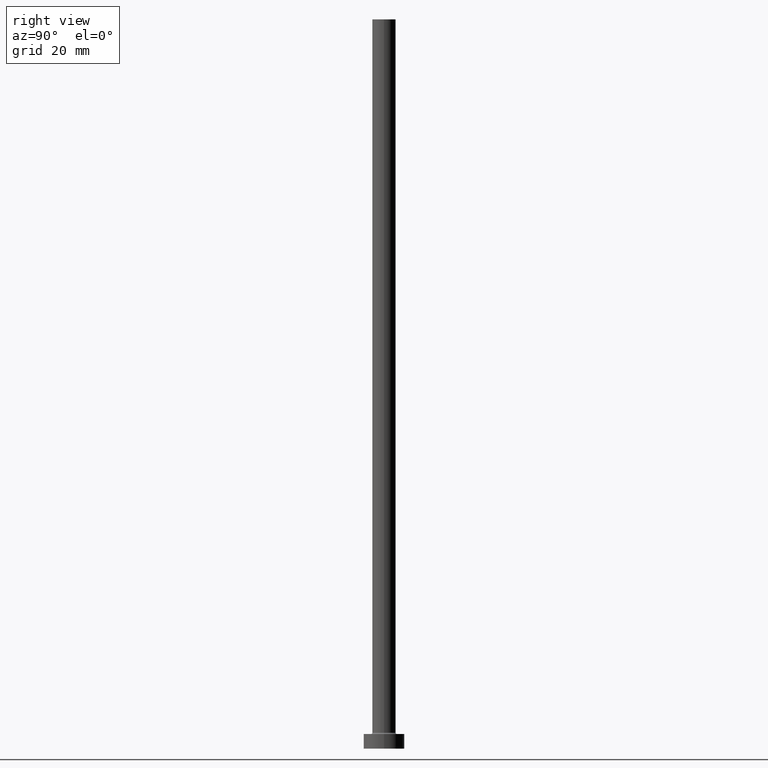
[diagram: clean part render]
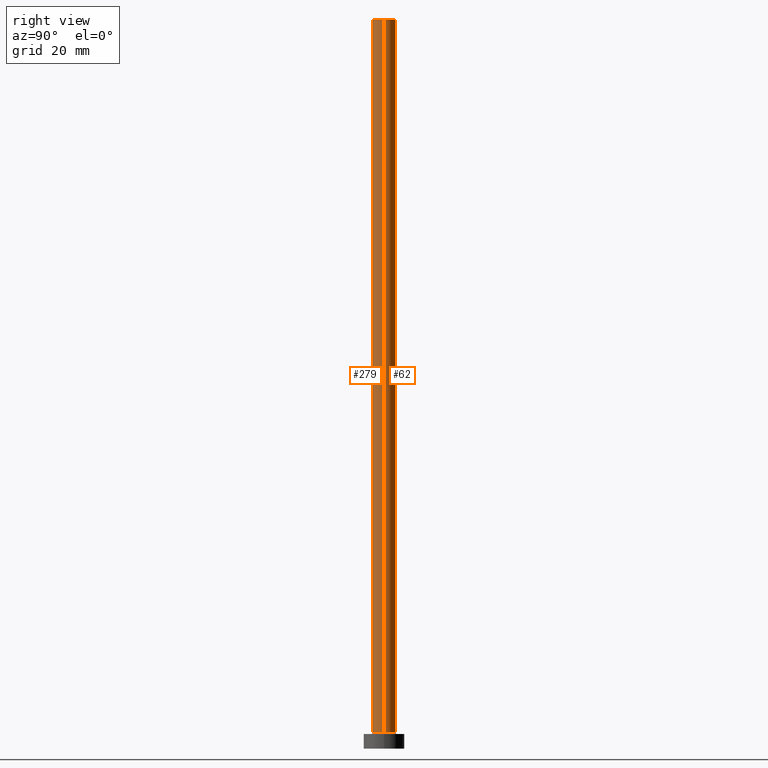
[diagram: same view with one multi-face feature highlighted, each face labeled with its STEP entity id]
A machine part, right view. The highlighted faces form ONE feature: a constant-radius fillet chain: 2 tangent blend faces with common blend radius 4 mm. The faces share edges in the B-rep.
Their STEP definitions:
[1] entity #279 (Cylinder):
#4 = EDGE_CURVE ( 'NONE', #28, #74, #382, .T. ) ;
#12 = DIRECTION ( 'NONE',  ( -0.000000000000000000, -0.000000000000000000, -1.000000000000000000 ) ) ;
#28 = VERTEX_POINT ( 'NONE', #126 ) ;
#35 = EDGE_CURVE ( 'NONE', #423, #246, #300, .T. ) ;
#51 = DIRECTION ( 'NONE',  ( -0.000000000000000000, -0.000000000000000000, -1.000000000000000000 ) ) ;
#55 = DIRECTION ( 'NONE',  ( 1.000000000000000000, 0.000000000000000000, 0.000000000000000000 ) ) ;
#74 = VERTEX_POINT ( 'NONE', #93 ) ;
#75 = FACE_OUTER_BOUND ( 'NONE', #204, .T. ) ;
#76 = CARTESIAN_POINT ( 'NONE',  ( 0.000000000000000000, 0.000000000000000000, 250.0000000000000000 ) ) ;
#93 = CARTESIAN_POINT ( 'NONE',  ( 4.000000000000000000, 4.898587196589412829E-16, 5.500000000000005329 ) ) ;
#98 = AXIS2_PLACEMENT_3D ( 'NONE', #267, #231, #55 ) ;
#116 = DIRECTION ( 'NONE',  ( -0.000000000000000000, -0.000000000000000000, -1.000000000000000000 ) ) ;
#126 = CARTESIAN_POINT ( 'NONE',  ( -4.000000000000000000, 0.000000000000000000, 5.500000000000005329 ) ) ;
#131 = CARTESIAN_POINT ( 'NONE',  ( -4.000000000000000000, 0.000000000000000000, 250.0000000000000000 ) ) ;
#134 = CARTESIAN_POINT ( 'NONE',  ( 4.000000000000000000, 4.898587196589412829E-16, 250.0000000000000000 ) ) ;
#171 = LINE ( 'NONE', #134, #194 ) ;
#194 = VECTOR ( 'NONE', #12, 1000.000000000000000 ) ;
#204 = EDGE_LOOP ( 'NONE', ( #277, #343, #429, #245 ) ) ;
#223 = CARTESIAN_POINT ( 'NONE',  ( 4.000000000000000000, 4.898587196589412829E-16, 250.0000000000000000 ) ) ;
#227 = LINE ( 'NONE', #131, #440 ) ;
#231 = DIRECTION ( 'NONE',  ( 0.000000000000000000, 0.000000000000000000, 1.000000000000000000 ) ) ;
#241 = CARTESIAN_POINT ( 'NONE',  ( 0.000000000000000000, 0.000000000000000000, 5.500000000000005329 ) ) ;
#245 = ORIENTED_EDGE ( 'NONE', *, *, #4, .T. ) ;
#246 = VERTEX_POINT ( 'NONE', #223 ) ;
#265 = DIRECTION ( 'NONE',  ( 1.000000000000000000, 0.000000000000000000, 0.000000000000000000 ) ) ;
#267 = CARTESIAN_POINT ( 'NONE',  ( 0.000000000000000000, 0.000000000000000000, 250.0000000000000000 ) ) ;
#277 = ORIENTED_EDGE ( 'NONE', *, *, #430, .F. ) ;
#279 = ADVANCED_FACE ( 'NONE', ( #75 ), #328, .T. ) ;
#300 = CIRCLE ( 'NONE', #98, 4.000000000000000000 ) ;
#328 = CYLINDRICAL_SURFACE ( 'NONE', #336, 4.000000000000000000 ) ;
#336 = AXIS2_PLACEMENT_3D ( 'NONE', #76, #116, #368 ) ;
#343 = ORIENTED_EDGE ( 'NONE', *, *, #35, .F. ) ;
#368 = DIRECTION ( 'NONE',  ( -1.000000000000000000, 0.000000000000000000, 0.000000000000000000 ) ) ;
#381 = CARTESIAN_POINT ( 'NONE',  ( -4.000000000000000000, 0.000000000000000000, 250.0000000000000000 ) ) ;
#382 = CIRCLE ( 'NONE', #441, 4.000000000000000000 ) ;
#392 = EDGE_CURVE ( 'NONE', #423, #28, #227, .T. ) ;
#409 = DIRECTION ( 'NONE',  ( 0.000000000000000000, 0.000000000000000000, 1.000000000000000000 ) ) ;
#423 = VERTEX_POINT ( 'NONE', #381 ) ;
#429 = ORIENTED_EDGE ( 'NONE', *, *, #392, .T. ) ;
#430 = EDGE_CURVE ( 'NONE', #246, #74, #171, .T. ) ;
#440 = VECTOR ( 'NONE', #51, 1000.000000000000000 ) ;
#441 = AXIS2_PLACEMENT_3D ( 'NONE', #241, #409, #265 ) ;
[2] entity #62 (Cylinder):
#12 = DIRECTION ( 'NONE',  ( -0.000000000000000000, -0.000000000000000000, -1.000000000000000000 ) ) ;
#16 = DIRECTION ( 'NONE',  ( 1.000000000000000000, 0.000000000000000000, 0.000000000000000000 ) ) ;
#21 = CARTESIAN_POINT ( 'NONE',  ( 0.000000000000000000, 0.000000000000000000, 250.0000000000000000 ) ) ;
#22 = EDGE_LOOP ( 'NONE', ( #173, #68, #275, #366 ) ) ;
#26 = FACE_OUTER_BOUND ( 'NONE', #22, .T. ) ;
#28 = VERTEX_POINT ( 'NONE', #126 ) ;
#29 = CIRCLE ( 'NONE', #162, 4.000000000000000000 ) ;
#51 = DIRECTION ( 'NONE',  ( -0.000000000000000000, -0.000000000000000000, -1.000000000000000000 ) ) ;
#62 = ADVANCED_FACE ( 'NONE', ( #26 ), #306, .T. ) ;
#68 = ORIENTED_EDGE ( 'NONE', *, *, #430, .T. ) ;
#74 = VERTEX_POINT ( 'NONE', #93 ) ;
#86 = DIRECTION ( 'NONE',  ( 0.000000000000000000, 0.000000000000000000, 1.000000000000000000 ) ) ;
#93 = CARTESIAN_POINT ( 'NONE',  ( 4.000000000000000000, 4.898587196589412829E-16, 5.500000000000005329 ) ) ;
#126 = CARTESIAN_POINT ( 'NONE',  ( -4.000000000000000000, 0.000000000000000000, 5.500000000000005329 ) ) ;
#131 = CARTESIAN_POINT ( 'NONE',  ( -4.000000000000000000, 0.000000000000000000, 250.0000000000000000 ) ) ;
#134 = CARTESIAN_POINT ( 'NONE',  ( 4.000000000000000000, 4.898587196589412829E-16, 250.0000000000000000 ) ) ;
#162 = AXIS2_PLACEMENT_3D ( 'NONE', #401, #399, #219 ) ;
#171 = LINE ( 'NONE', #134, #194 ) ;
#173 = ORIENTED_EDGE ( 'NONE', *, *, #222, .F. ) ;
#194 = VECTOR ( 'NONE', #12, 1000.000000000000000 ) ;
#202 = AXIS2_PLACEMENT_3D ( 'NONE', #272, #86, #16 ) ;
#219 = DIRECTION ( 'NONE',  ( 1.000000000000000000, 0.000000000000000000, 0.000000000000000000 ) ) ;
#222 = EDGE_CURVE ( 'NONE', #246, #423, #29, .T. ) ;
#223 = CARTESIAN_POINT ( 'NONE',  ( 4.000000000000000000, 4.898587196589412829E-16, 250.0000000000000000 ) ) ;
#227 = LINE ( 'NONE', #131, #440 ) ;
#246 = VERTEX_POINT ( 'NONE', #223 ) ;
#256 = AXIS2_PLACEMENT_3D ( 'NONE', #21, #446, #453 ) ;
#272 = CARTESIAN_POINT ( 'NONE',  ( 0.000000000000000000, 0.000000000000000000, 5.500000000000005329 ) ) ;
#275 = ORIENTED_EDGE ( 'NONE', *, *, #357, .T. ) ;
#306 = CYLINDRICAL_SURFACE ( 'NONE', #256, 4.000000000000000000 ) ;
#357 = EDGE_CURVE ( 'NONE', #74, #28, #418, .T. ) ;
#366 = ORIENTED_EDGE ( 'NONE', *, *, #392, .F. ) ;
#381 = CARTESIAN_POINT ( 'NONE',  ( -4.000000000000000000, 0.000000000000000000, 250.0000000000000000 ) ) ;
#392 = EDGE_CURVE ( 'NONE', #423, #28, #227, .T. ) ;
#399 = DIRECTION ( 'NONE',  ( 0.000000000000000000, 0.000000000000000000, 1.000000000000000000 ) ) ;
#401 = CARTESIAN_POINT ( 'NONE',  ( 0.000000000000000000, 0.000000000000000000, 250.0000000000000000 ) ) ;
#418 = CIRCLE ( 'NONE', #202, 4.000000000000000000 ) ;
#423 = VERTEX_POINT ( 'NONE', #381 ) ;
#430 = EDGE_CURVE ( 'NONE', #246, #74, #171, .T. ) ;
#440 = VECTOR ( 'NONE', #51, 1000.000000000000000 ) ;
#446 = DIRECTION ( 'NONE',  ( -0.000000000000000000, -0.000000000000000000, -1.000000000000000000 ) ) ;
#453 = DIRECTION ( 'NONE',  ( -1.000000000000000000, 0.000000000000000000, 0.000000000000000000 ) ) ;